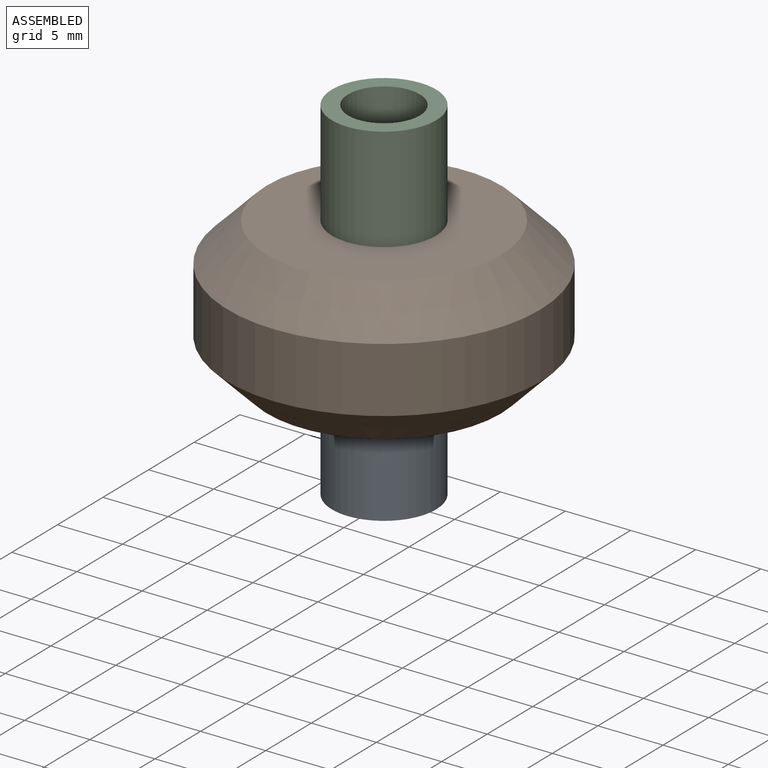
[diagram: assembled view]
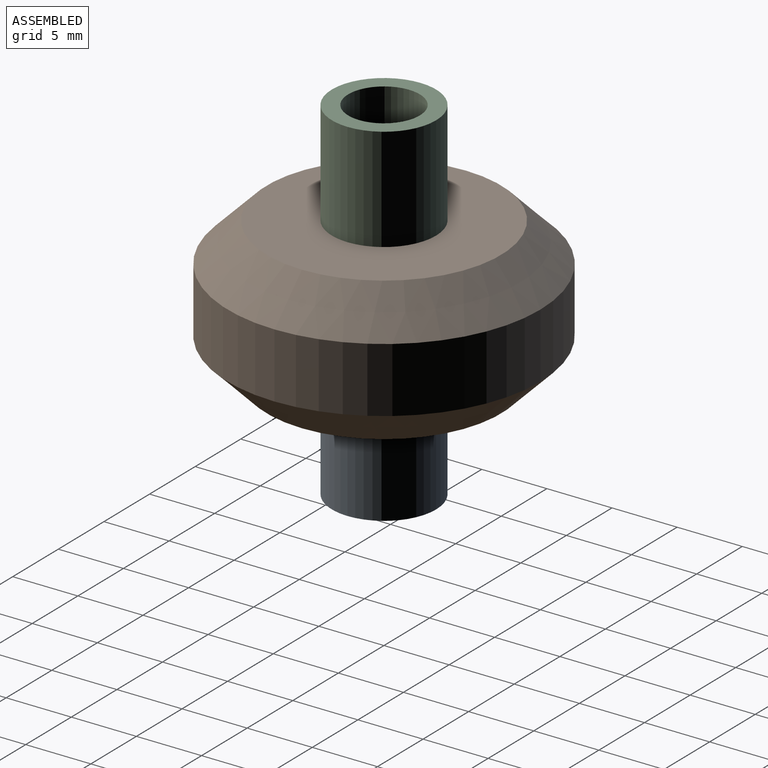
[diagram: assembled view, second angle]
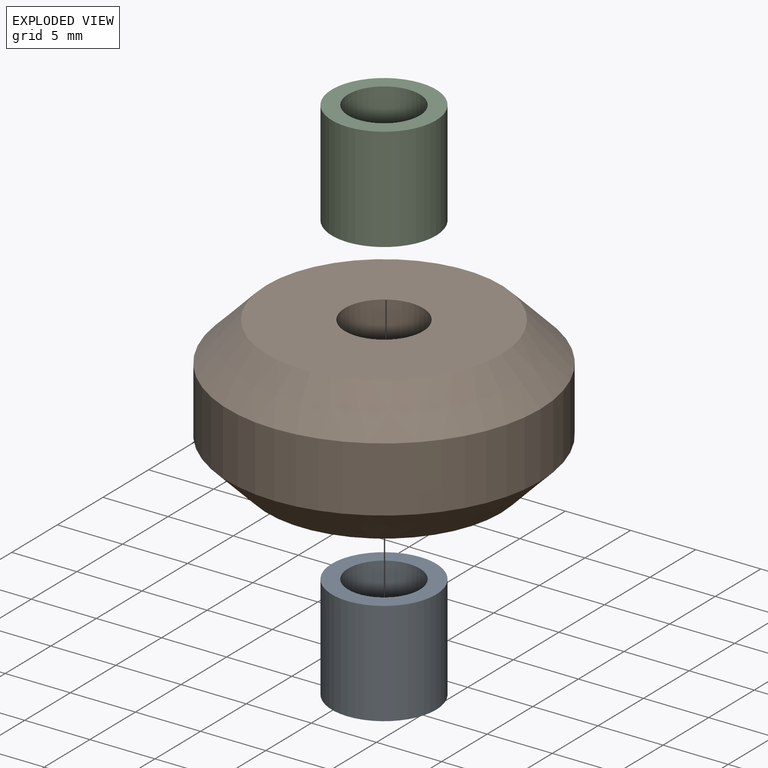
[diagram: exploded view]
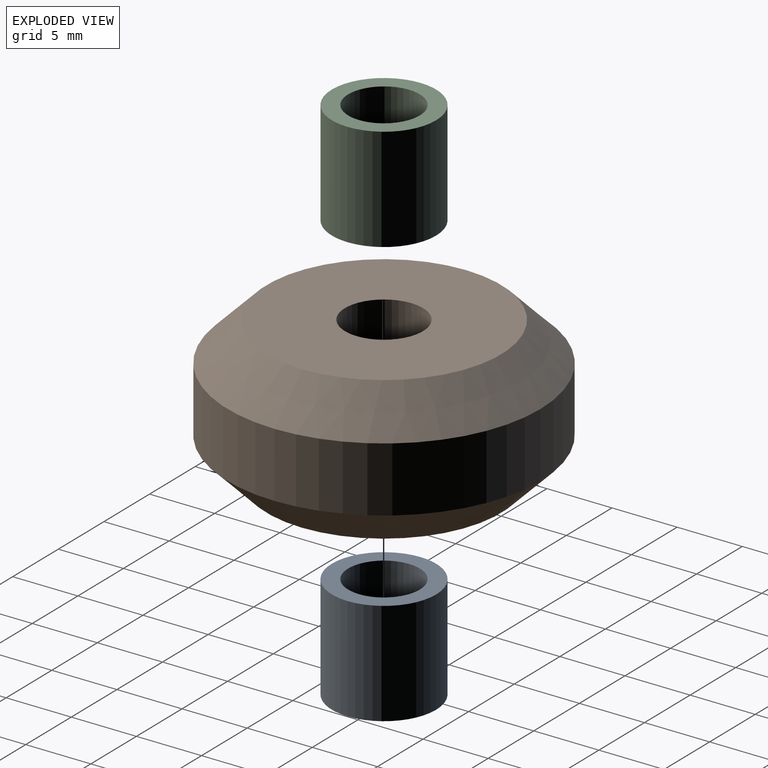
[diagram: exploded view, second angle]
ASSEMBLY  parts=3 mates=2
PART A: 4 faces, bbox 8x8x8 mm
  f0: cylinder r=2.75mm len=8mm, axis (0,0,-1), area 138.2mm2, adj f2,f3
  f1: cylinder r=4mm len=8mm, axis (0,0,-1), area 201.1mm2, adj f2,f3
  f2: plane 8x8mm, normal (0,0,1), area 26.5mm2, adj f0,f1
  f3: plane 8x8mm, normal (0,0,-1), area 26.5mm2, adj f0,f1
PART B: 6 faces, bbox 24x24x11 mm
  f0: cylinder r=3mm len=11mm, axis (0,0,-1), area 207.3mm2, adj f2,f3
  f1: cylinder r=12mm len=24mm, axis (0,0,-1), area 377mm2, adj f4,f5
  f2: plane 18x18mm, normal (0,0,1), area 226.2mm2, adj f0,f5
  f3: plane 18x18mm, normal (0,0,-1), area 226.2mm2, adj f0,f4
  f4: cone r=12mm half-angle=45deg, axis (0,0,1), area 279.9mm2, adj f1,f3
  f5: cone r=9mm half-angle=45deg, axis (0,0,-1), area 279.9mm2, adj f1,f2
PART C: same geometry as A
PLACE A rot(axis=(1,0,0),180deg) t=(-7.9,-0.02,-2.1)mm
PLACE B t=(-7.9,-0.02,-2.1)mm
PLACE C rot(axis=(1,0,0),180deg) t=(-7.9,-0.02,16.9)mm
MATE fastened C.f0 <-> B.f0  axis (0,0,-1) through (-7.9,-0.02,8.9)mm
MATE fastened A.f0 <-> B.f0  axis (0,0,1) through (-7.9,-0.02,-2.1)mm
